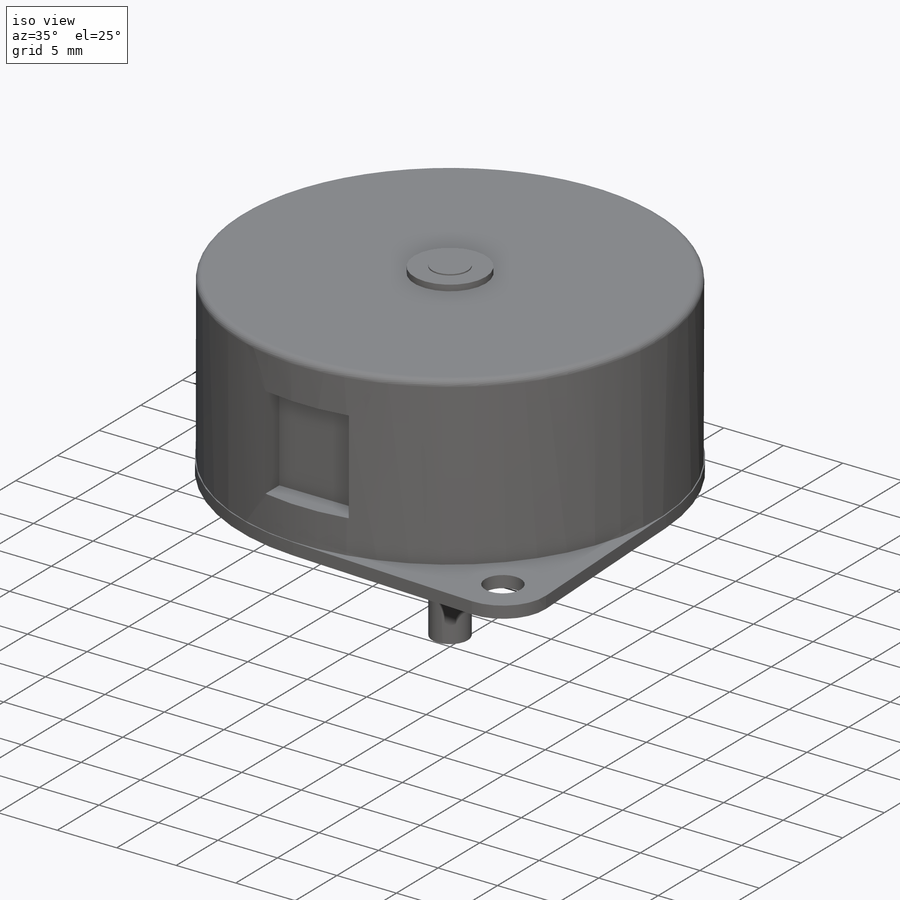
[diagram: iso view]
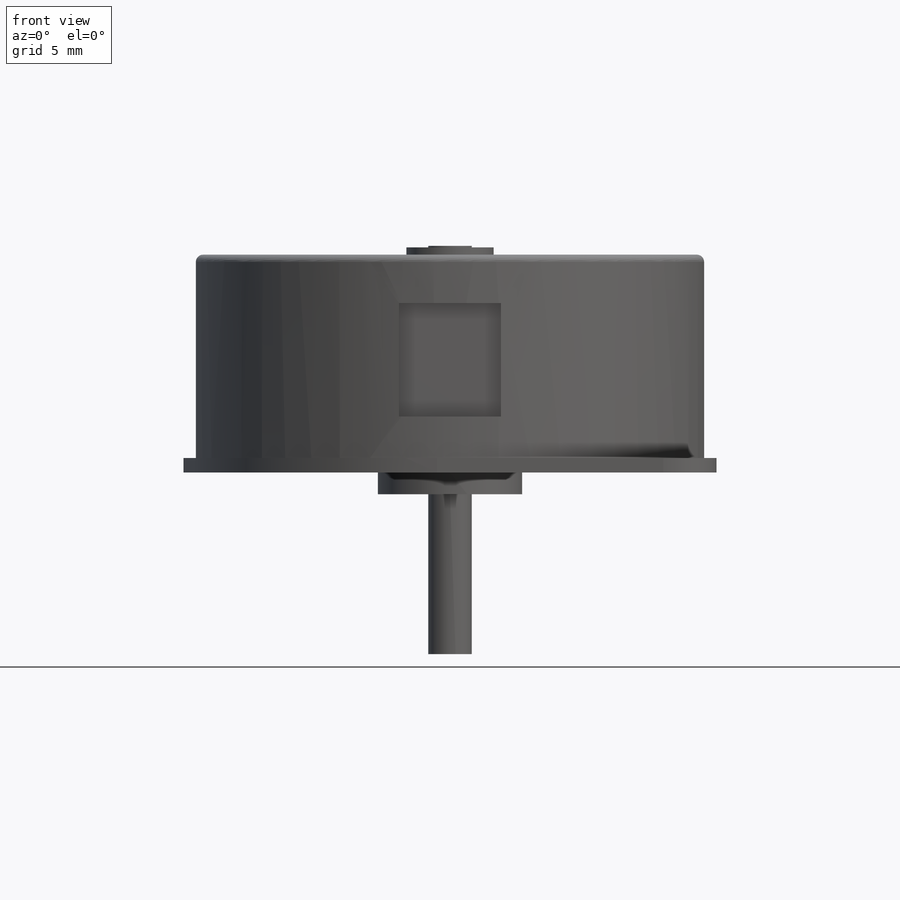
[diagram: front view]
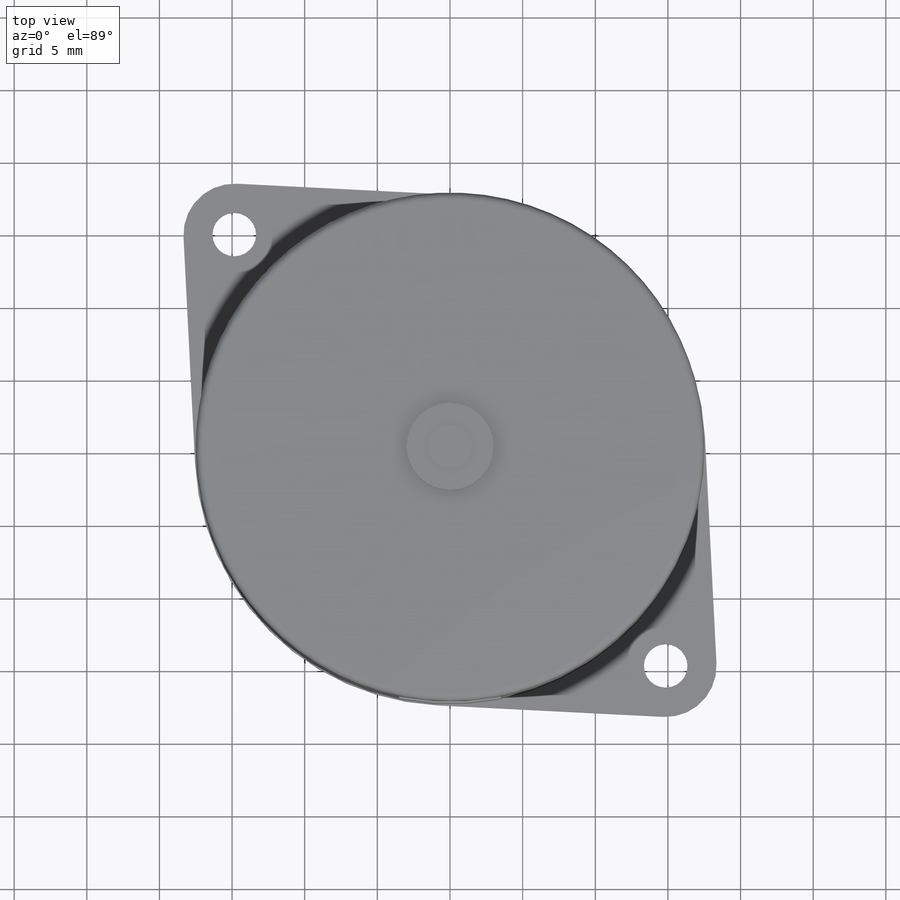
[diagram: top view]
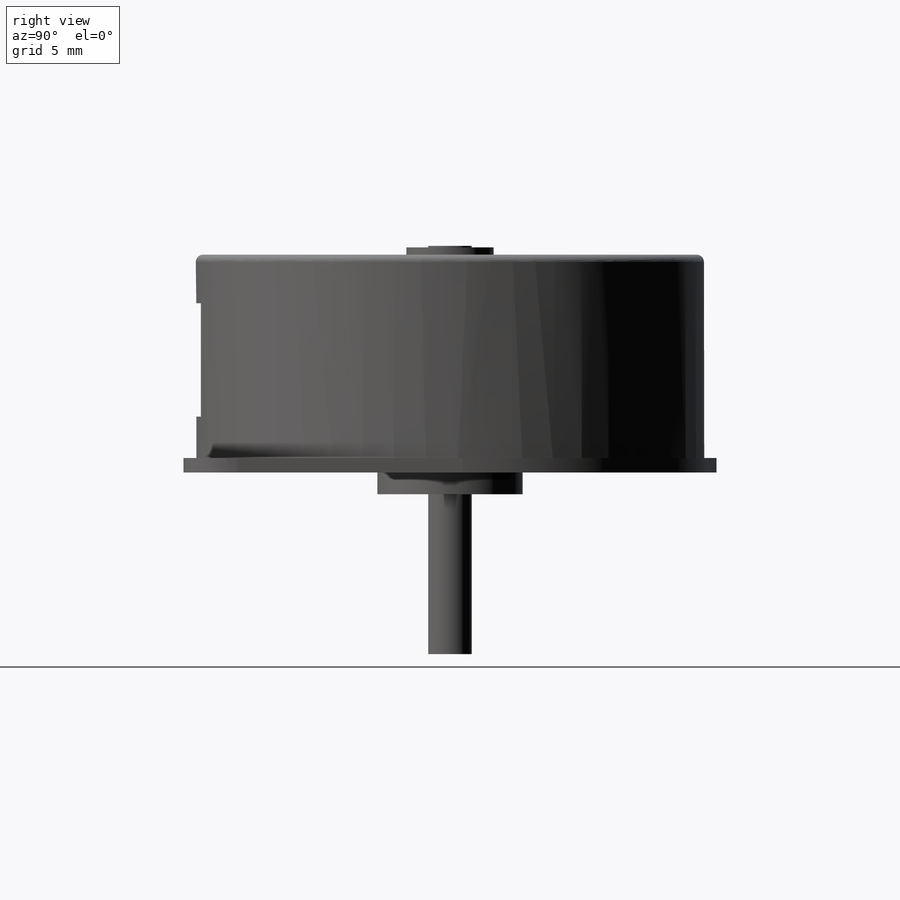
[diagram: right view]
SOLIDWORKS PART (.sldprt)
format: sldprt  version: not decoded by parser v0  size: 241,664 bytes
history: native  units: mm
features: sketch x7, extrude x6, material x1, fillet x1, plane x1, cut_extrude x1 (+13 scaffold rows collapsed)
feature tree (30):
  scaffold x13  (default folders/planes/origin — collapsed)
  material  "Material <not specified>"
  sketch  "Sketch1"  dims[D1=35.0mm]
  extrude  "Boss-Extrude1"  Depth=14mm
  sketch  "Sketch2"  dims[c1.D4=7.0mm c1.D5=3.0mm c1.D6=3.0mm c1.D7=3.5mm c1.D1=~50.336075mm c2.D1=45.0deg c2.D2=42.0mm c2.D3=21.0mm]
  extrude  "Boss-Extrude2"  Depth=1mm
  sketch  "Sketch3"  dims[D1=10.0mm]
  extrude  "Boss-Extrude3"  Depth=1.5mm
  sketch  "Sketch4"  dims[D1=3.0mm]
  extrude  "Boss-Extrude4"  Depth=11mm
  sketch  "Sketch5"  dims[D1=6.0mm]
  extrude  "Boss-Extrude5"  Depth=0.5mm
  sketch  "Sketch6"  dims[D1=~1.088034mm]
  extrude  "Boss-Extrude6"  Depth=0.1mm
  fillet  "Fillet1"  Radius=0.5mm
  plane  "Plane1"
  sketch  "Sketch7"  dims[D1=7.8mm D2=7.0mm]
  cut_extrude  "Cut-Extrude3"  Depth=2mm
decode coverage: 15 of 15 modeling features carry decoded parameters
note: ~ marks probable driven/reference dimensions
note: suppression state not decoded; provenance and decode notes live in map.json
